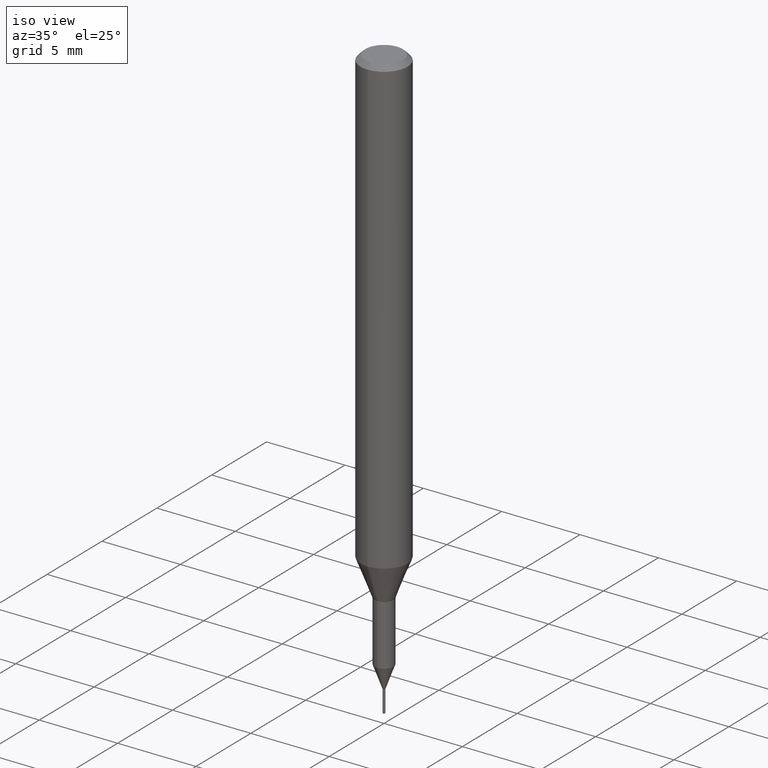
[diagram: clean part render]
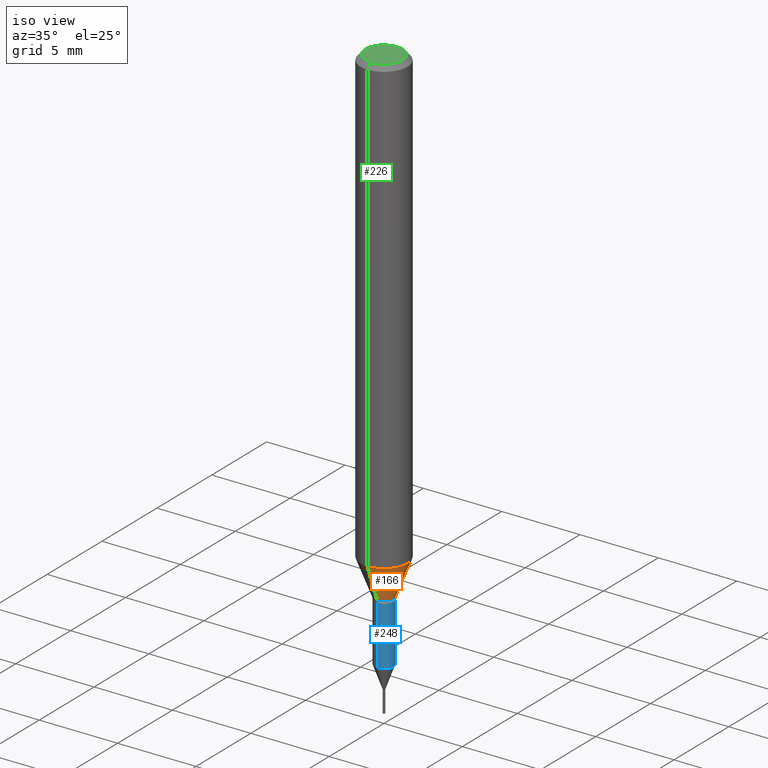
[diagram: same view with three faces highlighted in distinct colors, each labeled with its STEP entity id]
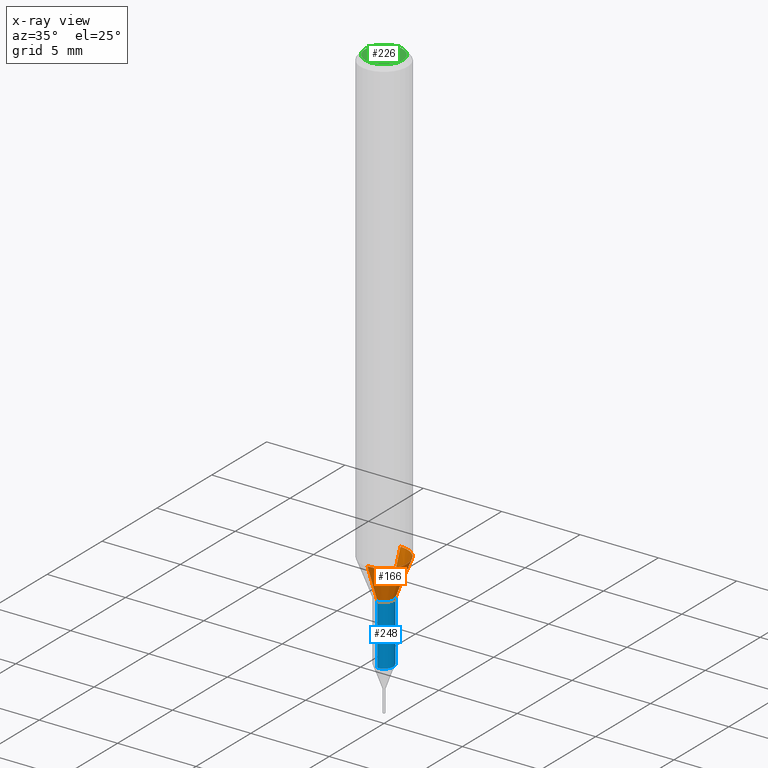
[diagram: x-ray of the same camera — body ghosted, the three highlighted faces saturated]
A machine part, iso view with three faces highlighted in distinct colors.
The next image is the same camera in x-ray (body ghosted, the three faces saturated) — at least one of them is partly hidden behind the body in this view.
Their STEP definitions:

[orange] entity #166 — the highlighted conical surface has half-angle 20.997 deg.
#128=VERTEX_POINT('',#309);
#140=VERTEX_POINT('',#323);
#142=VERTEX_POINT('',#325);
#144=VERTEX_POINT('',#327);
#160=EDGE_CURVE('',#140,#128,#345,.T.);
#166=ADVANCED_FACE('',(#351),#352,.T.);
#182=EDGE_CURVE('',#128,#142,#369,.T.);
#190=EDGE_CURVE('',#142,#144,#377,.T.);
#240=EDGE_CURVE('',#140,#144,#434,.T.);
#309=CARTESIAN_POINT('',(0.0,0.6,-31.3));
#323=CARTESIAN_POINT('',(0.0,1.5,-28.955));
#325=CARTESIAN_POINT('',(7.34763812293426E-017,-0.6,-31.3));
#327=CARTESIAN_POINT('',(1.83690953073357E-016,-1.5,-28.955));
#345=LINE('',#546,#547);
#351=FACE_OUTER_BOUND('',#553,.T.);
#352=CONICAL_SURFACE('',#554,1.05,0.366459241971866);
#369=CIRCLE('',#578,0.6);
#377=LINE('',#591,#592);
#434=CIRCLE('',#664,1.5);
#546=CARTESIAN_POINT('',(-1.2858366715135E-016,1.05,-30.1275));
#547=VECTOR('',#779,1.0);
#553=EDGE_LOOP('',(#781,#782,#783,#784));
#554=AXIS2_PLACEMENT_3D('',#785,#786,#787);
#578=AXIS2_PLACEMENT_3D('',#803,#804,#805);
#591=CARTESIAN_POINT('',(1.2858366715135E-016,-1.05,-30.1275));
#592=VECTOR('',#813,1.0);
#664=AXIS2_PLACEMENT_3D('',#896,#897,#898);
#779=DIRECTION('',(4.38791184365088E-017,-0.358312026550805,-0.93360189140182));
#781=ORIENTED_EDGE('',*,*,#160,.F.);
#782=ORIENTED_EDGE('',*,*,#240,.T.);
#783=ORIENTED_EDGE('',*,*,#190,.F.);
#784=ORIENTED_EDGE('',*,*,#182,.F.);
#785=CARTESIAN_POINT('',(0.0,0.0,-30.1275));
#786=DIRECTION('',(-0.0,-0.0,1.0));
#787=DIRECTION('',(0.0,1.0,0.0));
#803=CARTESIAN_POINT('',(0.0,0.0,-31.3));
#804=DIRECTION('',(0.0,0.0,-1.0));
#805=DIRECTION('',(0.0,1.0,0.0));
#813=DIRECTION('',(4.38791184365088E-017,-0.358312026550805,0.93360189140182));
#896=CARTESIAN_POINT('',(0.0,0.0,-28.955));
#897=DIRECTION('',(0.0,0.0,-1.0));
#898=DIRECTION('',(0.0,1.0,0.0));

[blue] entity #248 — the highlighted cylindrical surface (edge-blend (fillet) strip) has radius 0.5999 mm, axis along (-0, -0, 1).
#168=VERTEX_POINT('',#354);
#184=EDGE_CURVE('',#168,#204,#371,.T.);
#196=EDGE_CURVE('',#204,#266,#384,.T.);
#204=VERTEX_POINT('',#393);
#220=VERTEX_POINT('',#409);
#236=EDGE_CURVE('',#220,#168,#429,.T.);
#248=ADVANCED_FACE('',(#444),#445,.T.);
#260=EDGE_CURVE('',#220,#266,#457,.T.);
#266=VERTEX_POINT('',#464);
#354=CARTESIAN_POINT('',(0.0,0.59995,-35.144));
#371=CIRCLE('',#581,0.59995);
#384=LINE('',#601,#602);
#393=CARTESIAN_POINT('',(7.34702581975735E-017,-0.59995,-35.144));
#409=CARTESIAN_POINT('',(0.0,0.59995,-31.3));
#429=LINE('',#657,#658);
#444=FACE_OUTER_BOUND('',#675,.T.);
#445=CYLINDRICAL_SURFACE('',#676,0.59995);
#457=CIRCLE('',#694,0.59995);
#464=CARTESIAN_POINT('',(7.34702581975735E-017,-0.59995,-31.3));
#581=AXIS2_PLACEMENT_3D('',#806,#807,#808);
#601=CARTESIAN_POINT('',(7.34702581975735E-017,-0.59995,-33.222));
#602=VECTOR('',#825,1.0);
#657=CARTESIAN_POINT('',(-7.34702581975735E-017,0.59995,-33.222));
#658=VECTOR('',#887,1.0);
#675=EDGE_LOOP('',(#911,#912,#913,#914));
#676=AXIS2_PLACEMENT_3D('',#915,#916,#917);
#694=AXIS2_PLACEMENT_3D('',#923,#924,#925);
#806=CARTESIAN_POINT('',(0.0,0.0,-35.144));
#807=DIRECTION('',(0.0,0.0,-1.0));
#808=DIRECTION('',(0.0,1.0,0.0));
#825=DIRECTION('',(-0.0,-0.0,1.0));
#887=DIRECTION('',(0.0,0.0,-1.0));
#911=ORIENTED_EDGE('',*,*,#236,.F.);
#912=ORIENTED_EDGE('',*,*,#260,.T.);
#913=ORIENTED_EDGE('',*,*,#196,.F.);
#914=ORIENTED_EDGE('',*,*,#184,.F.);
#915=CARTESIAN_POINT('',(0.0,0.0,-33.222));
#916=DIRECTION('',(-0.0,-0.0,1.0));
#917=DIRECTION('',(0.0,1.0,0.0));
#923=CARTESIAN_POINT('',(0.0,0.0,-31.3));
#924=DIRECTION('',(0.0,0.0,-1.0));
#925=DIRECTION('',(0.0,1.0,0.0));

[green] entity #226 — the highlighted planar face has unit normal (-0, 0, 1).
#136=EDGE_CURVE('',#164,#162,#318,.T.);
#162=VERTEX_POINT('',#347);
#164=VERTEX_POINT('',#349);
#226=ADVANCED_FACE('',(#416),#417,.T.);
#234=EDGE_CURVE('',#162,#164,#427,.T.);
#318=CIRCLE('',#515,1.2);
#347=CARTESIAN_POINT('',(1.46952762458685E-016,-1.2,0.0));
#349=CARTESIAN_POINT('',(0.0,1.2,0.0));
#416=FACE_OUTER_BOUND('',#642,.T.);
#417=PLANE('',#643);
#427=CIRCLE('',#654,1.2);
#515=AXIS2_PLACEMENT_3D('',#749,#750,#751);
#642=EDGE_LOOP('',(#865,#866));
#643=AXIS2_PLACEMENT_3D('',#867,#868,#869);
#654=AXIS2_PLACEMENT_3D('',#884,#885,#886);
#749=CARTESIAN_POINT('',(0.0,0.0,0.0));
#750=DIRECTION('',(0.0,0.0,-1.0));
#751=DIRECTION('',(0.0,1.0,0.0));
#865=ORIENTED_EDGE('',*,*,#136,.F.);
#866=ORIENTED_EDGE('',*,*,#234,.F.);
#867=CARTESIAN_POINT('',(0.0,0.6,0.0));
#868=DIRECTION('',(-0.0,0.0,1.0));
#869=DIRECTION('',(0.0,-1.0,0.0));
#884=CARTESIAN_POINT('',(0.0,0.0,0.0));
#885=DIRECTION('',(0.0,0.0,-1.0));
#886=DIRECTION('',(0.0,1.0,0.0));